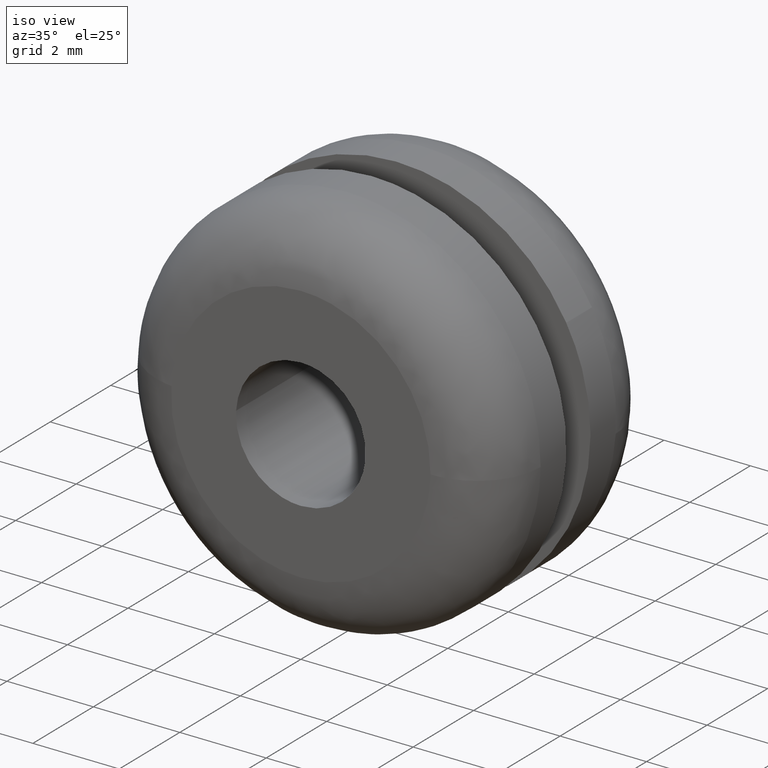
[diagram: clean part render]
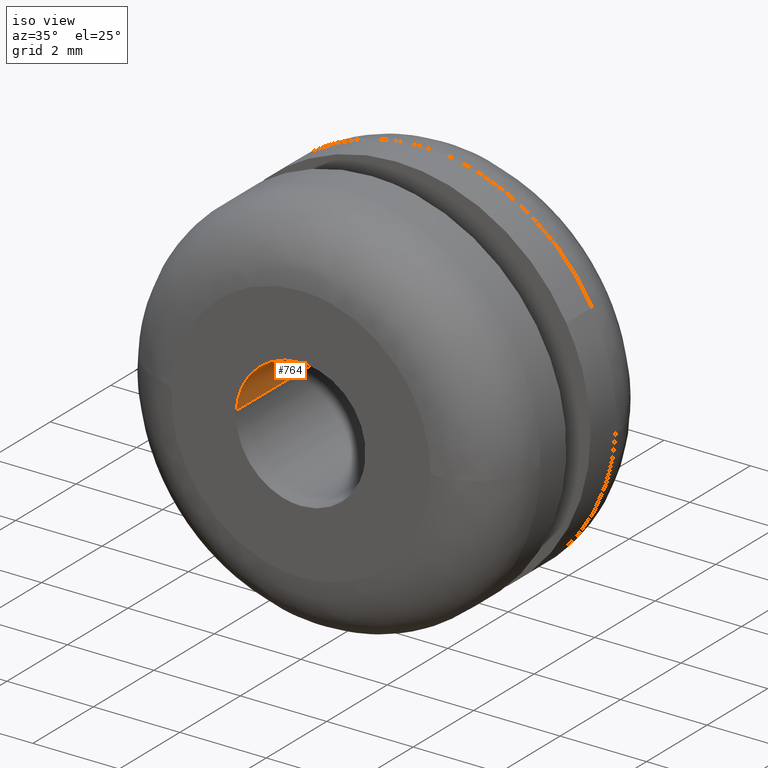
[diagram: same view with one face highlighted and labeled with its STEP entity id]
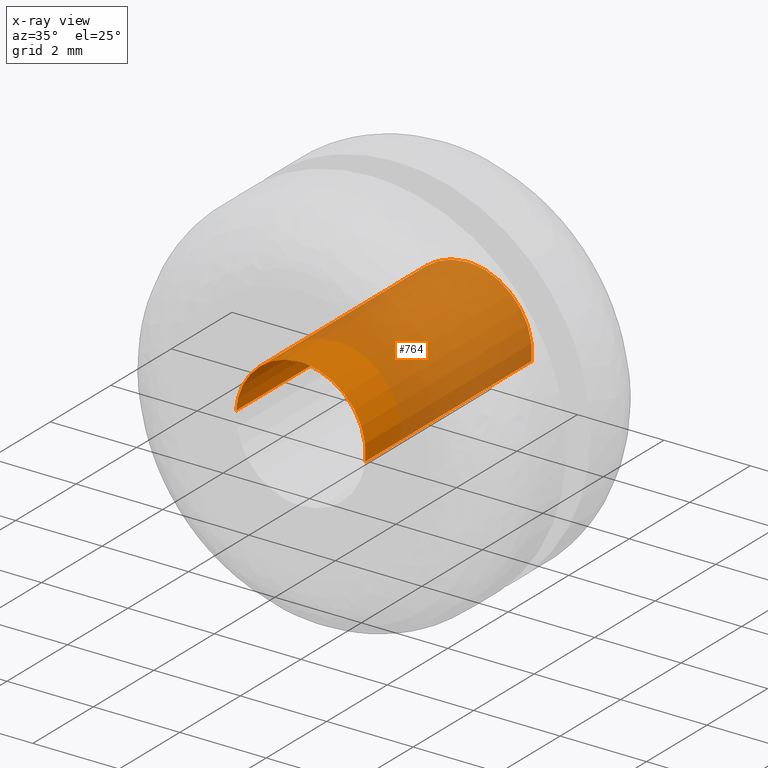
[diagram: x-ray of the same camera — body ghosted, the highlighted face saturated]
A machine part, iso view. The second image highlights one B-rep face of the part: STEP entity #764.
The next image is the same camera in x-ray: the body ghosted, the highlighted face saturated — about 74% of this face is hidden behind the body in this view.
In plain terms, the highlighted face is a freeform B-spline surface patch.
Its self-contained STEP definition (entity closure, byte-faithful):
#662=CARTESIAN_POINT('',(1.489514289545500,5.637500000000002,-0.177051351985138));
#663=CARTESIAN_POINT('',(1.494581423172908,5.637500000000001,-0.134422092956967));
#664=CARTESIAN_POINT('',(1.497202197632800,5.637500000000001,-0.091572809302286));
#665=CARTESIAN_POINT('',(1.588775006935085,5.637500000000002,1.405629388330514));
#666=CARTESIAN_POINT('',(0.091572809302285,5.637500000000001,1.497202197632800));
#667=CARTESIAN_POINT('',(-1.405629388330515,5.637500000000002,1.588775006935085));
#668=CARTESIAN_POINT('',(-1.497202197632800,5.637500000000001,0.091572809302285));
#669=CARTESIAN_POINT('',(1.489514289545500,-0.140937500000001,-0.177051351985138));
#670=CARTESIAN_POINT('',(1.494581423172908,-0.140937500000001,-0.134422092956967));
#671=CARTESIAN_POINT('',(1.497202197632800,-0.140937500000001,-0.091572809302286));
#672=CARTESIAN_POINT('',(1.588775006935085,-0.140937500000001,1.405629388330514));
#673=CARTESIAN_POINT('',(0.091572809302285,-0.140937500000001,1.497202197632800));
#674=CARTESIAN_POINT('',(-1.405629388330515,-0.140937500000001,1.588775006935085));
#675=CARTESIAN_POINT('',(-1.497202197632800,-0.140937500000001,0.091572809302285));
#683=(BOUNDED_SURFACE()B_SPLINE_SURFACE(2,1,((#662,#669),(#663,#670),(#664,#671),(#665,#672),(#666,#673),(#667,#674),(#668,#675)),.UNSPECIFIED.,.F.,.F.,.U.)B_SPLINE_SURFACE_WITH_KNOTS((3,2,2,3),(2,2),(3.078760800517997,3.141592653589793,4.712388980384690,6.283185307179586),(0.0,5.778437500000003),.UNSPECIFIED.)GEOMETRIC_REPRESENTATION_ITEM()RATIONAL_B_SPLINE_SURFACE(((0.977505800795127,0.977505800795127),(0.988284271247462,0.988284271247462),(1.0,1.0),(0.707106781186548,0.707106781186548),(1.0,1.0),(0.707106781186548,0.707106781186548),(1.0,1.0)))REPRESENTATION_ITEM('')SURFACE());
#684=CARTESIAN_POINT('',(1.489514289544444,5.500000000000000,-0.177051351994022));
#685=VERTEX_POINT('',#684);
#686=CARTESIAN_POINT('',(0.0,5.500000000000000,1.500000000000000));
#687=VERTEX_POINT('',#686);
#688=CARTESIAN_POINT('',(1.489514289544443,5.500000000000000,-0.177051351994022));
#689=CARTESIAN_POINT('',(1.500000000000000,5.500000000000000,-0.088836179486844));
#690=CARTESIAN_POINT('',(1.500000000000000,5.500000000000000,-3.061516E-016));
#691=CARTESIAN_POINT('',(1.500000000000000,5.500000000000001,1.500000000000000));
#692=CARTESIAN_POINT('',(0.0,5.500000000000000,1.500000000000000));
#700=(BOUNDED_CURVE()B_SPLINE_CURVE(2,(#688,#689,#690,#691,#692),.UNSPECIFIED.,.F.,.U.)B_SPLINE_CURVE_WITH_KNOTS((3,2,3),(0.229562473513628,0.250000000000000,0.500000000000000),.UNSPECIFIED.)CURVE()GEOMETRIC_REPRESENTATION_ITEM()RATIONAL_B_SPLINE_CURVE((0.956026754183934,0.976055948331286,1.0,0.707106781186548,1.0))REPRESENTATION_ITEM(''));
#701=EDGE_CURVE('',#685,#687,#700,.T.);
#702=ORIENTED_EDGE('',*,*,#701,.F.);
#703=CARTESIAN_POINT('',(1.489514289544444,-3.649225E-016,-0.177051351994022));
#704=VERTEX_POINT('',#703);
#705=CARTESIAN_POINT('',(1.489514289544444,5.500000000000000,-0.177051351994022));
#706=CARTESIAN_POINT('',(1.489514289544444,-3.649225E-016,-0.177051351994022));
#707=QUASI_UNIFORM_CURVE('',1,(#705,#706),.UNSPECIFIED.,.F.,.U.);
#708=EDGE_CURVE('',#685,#704,#707,.T.);
#709=ORIENTED_EDGE('',*,*,#708,.T.);
#710=CARTESIAN_POINT('',(0.0,-2.755364E-016,1.500000000000000));
#711=VERTEX_POINT('',#710);
#712=CARTESIAN_POINT('',(1.489514289544444,-3.649225E-016,-0.177051351994022));
#713=CARTESIAN_POINT('',(1.500000000000000,-2.755364E-016,-0.088836179486844));
#714=CARTESIAN_POINT('',(1.500000000000000,-2.755364E-016,-3.061516E-016));
#715=CARTESIAN_POINT('',(1.500000000000000,-2.755364E-016,1.500000000000000));
#716=CARTESIAN_POINT('',(0.0,-2.755364E-016,1.500000000000000));
#724=(BOUNDED_CURVE()B_SPLINE_CURVE(2,(#712,#713,#714,#715,#716),.UNSPECIFIED.,.F.,.U.)B_SPLINE_CURVE_WITH_KNOTS((3,2,3),(0.229562473513628,0.250000000000000,0.500000000000000),.UNSPECIFIED.)CURVE()GEOMETRIC_REPRESENTATION_ITEM()RATIONAL_B_SPLINE_CURVE((0.956026754183934,0.976055948331285,1.0,0.707106781186548,1.0))REPRESENTATION_ITEM(''));
#725=EDGE_CURVE('',#704,#711,#724,.T.);
#726=ORIENTED_EDGE('',*,*,#725,.T.);
#727=CARTESIAN_POINT('',(-1.497202215295620,-3.459350E-016,0.091572520516817));
#728=VERTEX_POINT('',#727);
#729=CARTESIAN_POINT('',(0.0,-2.755364E-016,1.500000000000000));
#730=CARTESIAN_POINT('',(-1.411059645715628,-2.755364E-016,1.500000000000000));
#731=CARTESIAN_POINT('',(-1.497202215295621,-3.459350E-016,0.091572520516817));
#739=(BOUNDED_CURVE()B_SPLINE_CURVE(2,(#729,#730,#731),.UNSPECIFIED.,.F.,.U.)B_SPLINE_CURVE_WITH_KNOTS((3,3),(0.500000000000000,0.739333028804800),.UNSPECIFIED.)CURVE()GEOMETRIC_REPRESENTATION_ITEM()RATIONAL_B_SPLINE_CURVE((1.0,0.719603915299957,0.976072184330063))REPRESENTATION_ITEM(''));
#740=EDGE_CURVE('',#711,#728,#739,.T.);
#741=ORIENTED_EDGE('',*,*,#740,.T.);
#742=CARTESIAN_POINT('',(-1.497202215511425,5.500000000000000,0.091572516988414));
#743=VERTEX_POINT('',#742);
#744=CARTESIAN_POINT('',(-1.497202215511425,5.500000000000000,0.091572516988414));
#745=CARTESIAN_POINT('',(-1.497202215295620,-3.459350E-016,0.091572520516817));
#746=QUASI_UNIFORM_CURVE('',1,(#744,#745),.UNSPECIFIED.,.F.,.U.);
#747=EDGE_CURVE('',#743,#728,#746,.T.);
#748=ORIENTED_EDGE('',*,*,#747,.F.);
#749=CARTESIAN_POINT('',(0.0,5.500000000000000,1.500000000000000));
#750=CARTESIAN_POINT('',(-1.411059652378841,5.499999999999999,1.500000000000000));
#751=CARTESIAN_POINT('',(-1.497202215511425,5.500000000000000,0.091572516988414));
#759=(BOUNDED_CURVE()B_SPLINE_CURVE(2,(#749,#750,#751),.UNSPECIFIED.,.F.,.U.)B_SPLINE_CURVE_WITH_KNOTS((3,3),(0.500000000000000,0.739333029618070),.UNSPECIFIED.)CURVE()GEOMETRIC_REPRESENTATION_ITEM()RATIONAL_B_SPLINE_CURVE((1.0,0.719603914347153,0.976072186073055))REPRESENTATION_ITEM(''));
#760=EDGE_CURVE('',#687,#743,#759,.T.);
#761=ORIENTED_EDGE('',*,*,#760,.F.);
#762=EDGE_LOOP('',(#702,#709,#726,#741,#748,#761));
#763=FACE_OUTER_BOUND('',#762,.T.);
#764=ADVANCED_FACE('',(#763),#683,.F.);